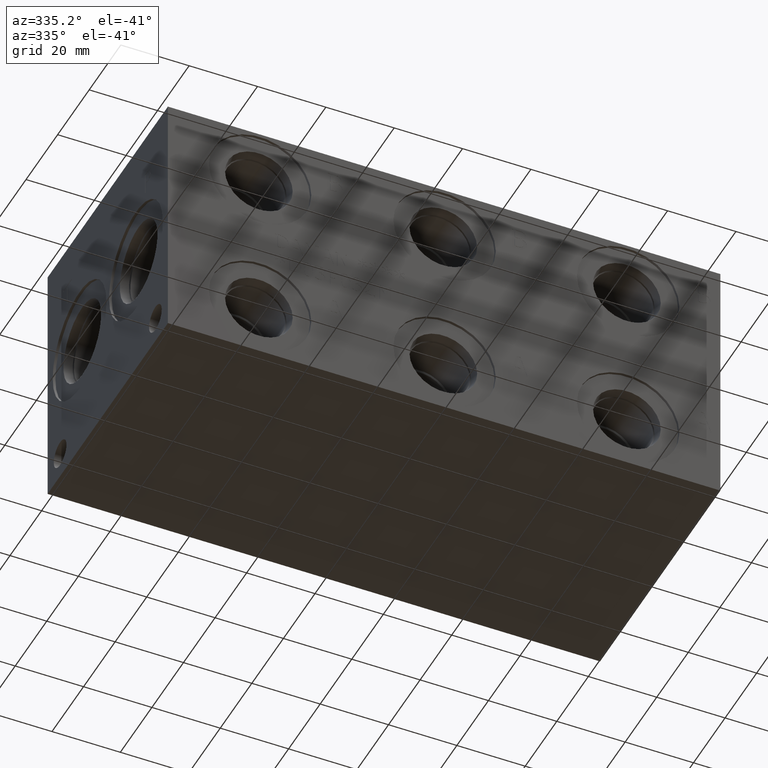
[diagram: clean part render]
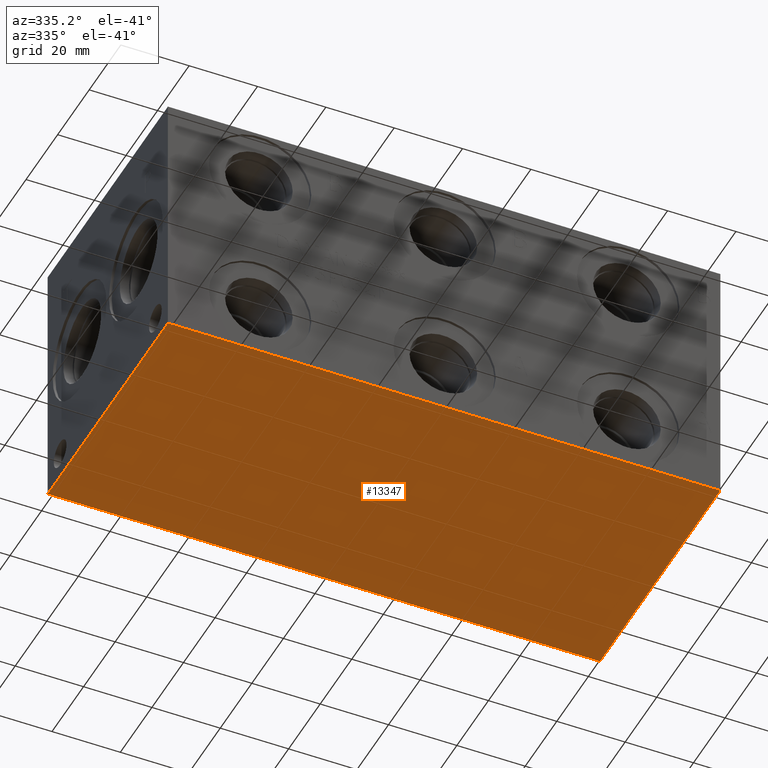
[diagram: same view with one face highlighted and labeled with its STEP entity id]
A machine part, auxiliary view. The second image highlights one B-rep face of the part: STEP entity #13347.
In plain terms, the highlighted planar face has unit normal (0, 0, 1).
Its self-contained STEP definition (entity closure, byte-faithful):
#1025=PLANE('',#14250);
#1715=FACE_OUTER_BOUND('',#2528,.T.);
#2528=EDGE_LOOP('',(#12030,#12031,#12032,#12033));
#2561=LINE('',#17420,#3745);
#2621=LINE('',#17695,#3805);
#2939=LINE('',#19869,#4123);
#3711=LINE('',#23046,#4895);
#3745=VECTOR('',#14305,10.);
#3805=VECTOR('',#14419,10.);
#4123=VECTOR('',#14925,10.);
#4895=VECTOR('',#17205,10.);
#5239=VERTEX_POINT('',#17418);
#5240=VERTEX_POINT('',#17419);
#5299=VERTEX_POINT('',#17693);
#5300=VERTEX_POINT('',#17694);
#6538=EDGE_CURVE('',#5239,#5240,#2561,.T.);
#6622=EDGE_CURVE('',#5299,#5300,#2621,.T.);
#7126=EDGE_CURVE('',#5300,#5239,#2939,.T.);
#8336=EDGE_CURVE('',#5240,#5299,#3711,.T.);
#12030=ORIENTED_EDGE('',*,*,#7126,.F.);
#12031=ORIENTED_EDGE('',*,*,#6622,.F.);
#12032=ORIENTED_EDGE('',*,*,#8336,.F.);
#12033=ORIENTED_EDGE('',*,*,#6538,.F.);
#13347=ADVANCED_FACE('',(#1715),#1025,.F.);
#14250=AXIS2_PLACEMENT_3D('',#23051,#17213,#17214);
#14305=DIRECTION('',(0.,1.,0.));
#14419=DIRECTION('',(0.,-1.,0.));
#14925=DIRECTION('',(1.,0.,0.));
#17205=DIRECTION('',(-1.,0.,0.));
#17213=DIRECTION('center_axis',(0.,0.,1.));
#17214=DIRECTION('ref_axis',(1.,0.,0.));
#17418=CARTESIAN_POINT('',(161.671,0.,0.));
#17419=CARTESIAN_POINT('',(161.671,76.2,0.));
#17420=CARTESIAN_POINT('',(161.671,0.,0.));
#17693=CARTESIAN_POINT('',(0.,76.2,0.));
#17694=CARTESIAN_POINT('',(0.,0.,0.));
#17695=CARTESIAN_POINT('',(0.,76.2,0.));
#19869=CARTESIAN_POINT('',(0.,0.,0.));
#23046=CARTESIAN_POINT('',(161.671,76.2,0.));
#23051=CARTESIAN_POINT('Origin',(80.8355,38.1,0.));